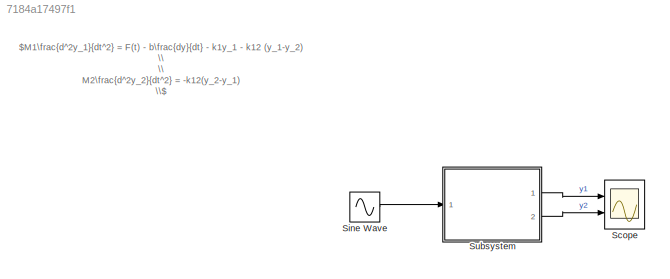
MODEL slx_7184a17497f1
KIND model
CONFIG AbsTol = auto
CONFIG EnableMultiTasking = off
CONFIG FixedStep = auto
CONFIG MaxStep = auto
CONFIG MinStep = auto
CONFIG RelTol = 1e-3
CONFIG SampleTimeConstraint = Unconstrained
CONFIG SolverName = VariableStepAuto
CONFIG StartTime = 0.0
CONFIG StopTime = 10
BLOCK [Scope] Scope
  Floating = off
  NumInputPorts = 2
  Ports = [2]
  ScopeSpecificationString = Simulink.scopes.TimeScopeBlockCfg('CurrentConfiguration', extmgr.ConfigurationSet(extmgr.Configuration('Core','General UI',true),extmgr.Configuration('Core','Source UI',true),extmgr.Configuration('Sources','WiredSimulink',true),extmgr.Configuration('Visuals','Time Domain',true,'SerializedDisplays',{struct('MinYLimReal','-0.00105','MaxYLimReal','0.0023','YLabelReal','','MinYLimMag','0.00000','MaxYL...<+1983ch>
BLOCK [Sin] Sine Wave
  Amplitude = 2
  Frequency = 10
  Ports = [0, 1]
  SampleTime = 0
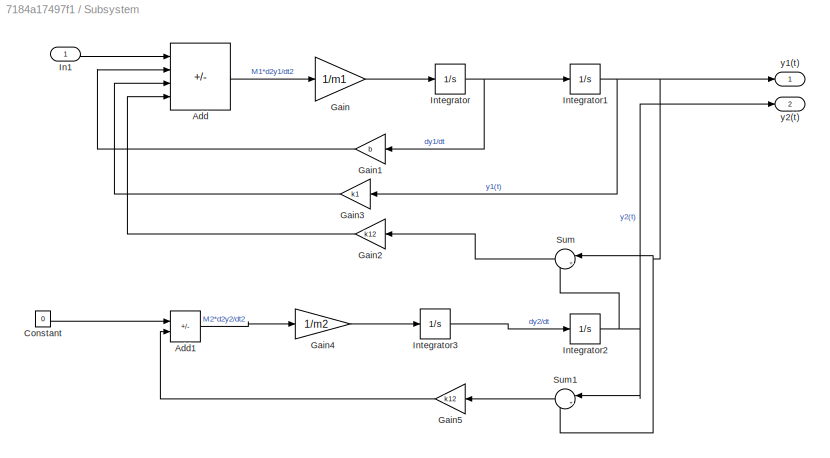
BLOCK [SubSystem] Subsystem
  Ports = [1, 2]
  RequestExecContextInheritance = off
BLOCK [Sum] Subsystem/Add
  IconShape = rectangular
  Inputs = +---
  Ports = [4, 1]
BLOCK [Sum] Subsystem/Add1
  IconShape = rectangular
  Inputs = --
  Ports = [2, 1]
BLOCK [Constant] Subsystem/Constant
  Value = 0
BLOCK [Gain] Subsystem/Gain
  Gain = 1/m1
BLOCK [Gain] Subsystem/Gain1
  Gain = b
  NameLocation = top
BLOCK [Gain] Subsystem/Gain2
  Gain = k12
  NameLocation = top
BLOCK [Gain] Subsystem/Gain3
  Gain = k1
  NameLocation = top
BLOCK [Gain] Subsystem/Gain4
  Gain = 1/m2
BLOCK [Gain] Subsystem/Gain5
  Gain = k12
  NameLocation = top
BLOCK [Inport] Subsystem/In1
BLOCK [Integrator] Subsystem/Integrator
  Ports = [1, 1]
BLOCK [Integrator] Subsystem/Integrator1
  Ports = [1, 1]
BLOCK [Integrator] Subsystem/Integrator2
  Ports = [1, 1]
BLOCK [Integrator] Subsystem/Integrator3
  Ports = [1, 1]
BLOCK [Sum] Subsystem/Sum
  Inputs = |+-
  NameLocation = top
  Ports = [2, 1]
BLOCK [Sum] Subsystem/Sum1
  Inputs = |+-
  NameLocation = top
  Ports = [2, 1]
BLOCK [Outport] Subsystem/y1(t)
BLOCK [Outport] Subsystem/y2(t)
  Port = 2
ANNOTATION (root): $M1\frac{d^2y_1}{dt^2} = F(t) - b\frac{dy}{dt} - k1y_1 - k12 (y_1-y_2) \\ \\ M2\frac{d^2y_2}{dt^2} = -k12(y_2-y_1) \\$
LINE Sine Wave:1 -> Subsystem:1
LINE Subsystem/Add1:1 -> Subsystem/Gain4:1
LINE Subsystem/Add:1 -> Subsystem/Gain:1
LINE Subsystem/Constant:1 -> Subsystem/Add1:1
LINE Subsystem/Gain1:1 -> Subsystem/Add:2
LINE Subsystem/Gain2:1 -> Subsystem/Add:4
LINE Subsystem/Gain3:1 -> Subsystem/Add:3
LINE Subsystem/Gain4:1 -> Subsystem/Integrator3:1
LINE Subsystem/Gain5:1 -> Subsystem/Add1:2
LINE Subsystem/Gain:1 -> Subsystem/Integrator:1
LINE Subsystem/In1:1 -> Subsystem/Add:1
NET Subsystem/Integrator1:1 -> Subsystem/Gain3:1, Subsystem/Sum1:2, Subsystem/Sum:1, Subsystem/y1(t):1
NET Subsystem/Integrator2:1 -> Subsystem/Sum1:1, Subsystem/Sum:2, Subsystem/y2(t):1
LINE Subsystem/Integrator3:1 -> Subsystem/Integrator2:1
NET Subsystem/Integrator:1 -> Subsystem/Gain1:1, Subsystem/Integrator1:1
LINE Subsystem/Sum1:1 -> Subsystem/Gain5:1
LINE Subsystem/Sum:1 -> Subsystem/Gain2:1
LINE Subsystem:1 -> Scope:1
LINE Subsystem:2 -> Scope:2
note: NET lines group one-source signal fan-out (src -> all destinations, sorted); 1:1 wires keep LINE
